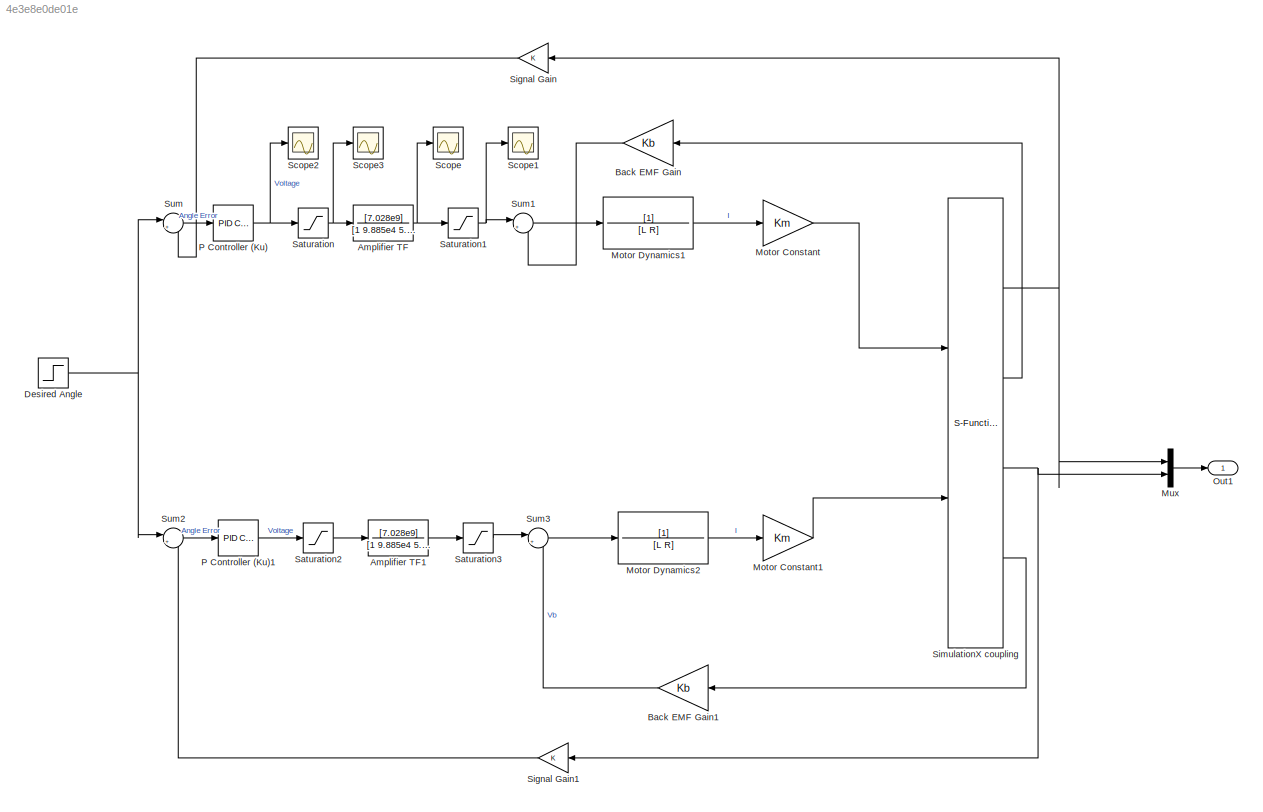
MODEL slx_4e3e8e0de01e
KIND model
CONFIG AbsTol = auto
CONFIG EnableMultiTasking = off
CONFIG FixedStep = auto
CONFIG MaxStep = auto
CONFIG MinStep = auto
CONFIG RelTol = 1e-3
CONFIG SampleTimeConstraint = Unconstrained
CONFIG SolverName = VariableStepAuto
CONFIG StartTime = 0.0
CONFIG StopTime = 1
BLOCK [TransferFcn] Amplifier TF
  Denominator = [1 9.885e4 5.876e9]
  Numerator = [7.028e9]
BLOCK [TransferFcn] Amplifier TF1
  Denominator = [1 9.885e4 5.876e9]
  Numerator = [7.028e9]
BLOCK [Gain] Back EMF Gain
  Gain = Kb
BLOCK [Gain] Back EMF Gain1
  Gain = Kb
BLOCK [Step] Desired Angle
  After = pi/2
  SampleTime = 0
  Time = 0.1
BLOCK [Gain] Motor Constant
  Gain = Km
BLOCK [Gain] Motor Constant1
  Gain = Km
BLOCK [TransferFcn] Motor Dynamics1
  Denominator = [L R]
BLOCK [TransferFcn] Motor Dynamics2
  Denominator = [L R]
BLOCK [Mux] Mux
  DisplayOption = bar
  Inputs = 2
  Ports = [2, 1]
BLOCK [Outport] Out1
BLOCK [Reference] P Controller (Ku)  REF=pid_lib/PID Controller
  Ports = [1, 1]
  SourceBlock = pid_lib/PID Controller
  SourceProductBaseCode = SL
  SourceType = PID 1dof
BLOCK [Reference] P Controller (Ku)1  REF=pid_lib/PID Controller
  Ports = [1, 1]
  SourceBlock = pid_lib/PID Controller
  SourceProductBaseCode = SL
  SourceType = PID 1dof
BLOCK [Saturate] Saturation
  LowerLimit = -5
  UpperLimit = 5
BLOCK [Saturate] Saturation1
  LowerLimit = -6
  UpperLimit = 6
BLOCK [Saturate] Saturation2
  LowerLimit = -5
  UpperLimit = 5
BLOCK [Saturate] Saturation3
  LowerLimit = -6
  UpperLimit = 6
BLOCK [Scope] Scope
  Floating = off
  NumInputPorts = 1
  Ports = [1]
  ScopeSpecificationString = Simulink.scopes.TimeScopeBlockCfg('CurrentConfiguration', extmgr.ConfigurationSet(extmgr.Configuration('Core','General UI',true),extmgr.Configuration('Core','Source UI',true),extmgr.Configuration('Sources','WiredSimulink',true),extmgr.Configuration('Visuals','Time Domain',true,'SerializedDisplays',{struct('MinYLimReal','-0.52095','MaxYLimReal','0.81493','YLabelReal','','MinYLimMag','0.00000','MaxY...<+1373ch>
BLOCK [Scope] Scope1
  Floating = off
  NumInputPorts = 1
  Ports = [1]
  ScopeSpecificationString = Simulink.scopes.TimeScopeBlockCfg('CurrentConfiguration', extmgr.ConfigurationSet(extmgr.Configuration('Core','General UI',true),extmgr.Configuration('Core','Source UI',true),extmgr.Configuration('Sources','WiredSimulink',true,'DataLoggingVariableName','ScopeData1'),extmgr.Configuration('Visuals','Time Domain',true,'SerializedDisplays',{struct('MinYLimReal','-0.52095','MaxYLimReal','0.81493','YLab...<+1425ch>
BLOCK [Scope] Scope2
  Floating = off
  NumInputPorts = 1
  Ports = [1]
  ScopeSpecificationString = Simulink.scopes.TimeScopeBlockCfg('CurrentConfiguration', extmgr.ConfigurationSet(extmgr.Configuration('Core','General UI',true),extmgr.Configuration('Core','Source UI',true),extmgr.Configuration('Sources','WiredSimulink',true,'DataLoggingVariableName','ScopeData2'),extmgr.Configuration('Visuals','Time Domain',true,'SerializedDisplays',{struct('MinYLimReal','-0.30816','MaxYLimReal','0.55784','YLab...<+1407ch>
BLOCK [Scope] Scope3
  Floating = off
  NumInputPorts = 1
  Ports = [1]
  ScopeSpecificationString = Simulink.scopes.TimeScopeBlockCfg('CurrentConfiguration', extmgr.ConfigurationSet(extmgr.Configuration('Core','General UI',true),extmgr.Configuration('Core','Source UI',true),extmgr.Configuration('Sources','WiredSimulink',true,'DataLoggingVariableName','ScopeData3'),extmgr.Configuration('Visuals','Time Domain',true,'SerializedDisplays',{struct('MinYLimReal','-0.30816','MaxYLimReal','0.55784','YLab...<+1410ch>
BLOCK [Gain] Signal Gain
  NameLocation = top
BLOCK [Gain] Signal Gain1
  NameLocation = top
BLOCK [S-Function] SimulationX coupling
  EnableBusSupport = off
  FunctionName = ITIFct2
  Parameters = ip, port, ts, nIn, nOut
  Ports = [2, 4]
  SFcnIsStateOwnerBlock = off
  SFunctionDeploymentMode = off
BLOCK [Sum] Sum
  Inputs = |+-
  Ports = [2, 1]
BLOCK [Sum] Sum1
  Inputs = |+-
  Ports = [2, 1]
BLOCK [Sum] Sum2
  Inputs = |+-
  Ports = [2, 1]
BLOCK [Sum] Sum3
  Inputs = |+-
  Ports = [2, 1]
LINE Amplifier TF1:1 -> Saturation3:1
NET Amplifier TF:1 -> Saturation1:1, Scope:1
LINE Back EMF Gain1:1 -> Sum3:2
LINE Back EMF Gain:1 -> Sum1:2
NET Desired Angle:1 -> Sum2:1, Sum:1
LINE Motor Constant1:1 -> SimulationX coupling:2
LINE Motor Constant:1 -> SimulationX coupling:1
LINE Motor Dynamics1:1 -> Motor Constant:1
LINE Motor Dynamics2:1 -> Motor Constant1:1
LINE Mux:1 -> Out1:1
LINE P Controller (Ku)1:1 -> Saturation2:1
NET P Controller (Ku):1 -> Saturation:1, Scope2:1
NET Saturation1:1 -> Scope1:1, Sum1:1
LINE Saturation2:1 -> Amplifier TF1:1
LINE Saturation3:1 -> Sum3:1
NET Saturation:1 -> Amplifier TF:1, Scope3:1
LINE Signal Gain1:1 -> Sum2:2
LINE Signal Gain:1 -> Sum:2
NET SimulationX coupling:1 -> Mux:1, Signal Gain:1
LINE SimulationX coupling:2 -> Back EMF Gain:1
NET SimulationX coupling:3 -> Mux:2, Signal Gain1:1
LINE SimulationX coupling:4 -> Back EMF Gain1:1
LINE Sum1:1 -> Motor Dynamics1:1
LINE Sum2:1 -> P Controller (Ku)1:1
LINE Sum3:1 -> Motor Dynamics2:1
LINE Sum:1 -> P Controller (Ku):1
note: NET lines group one-source signal fan-out (src -> all destinations, sorted); 1:1 wires keep LINE
